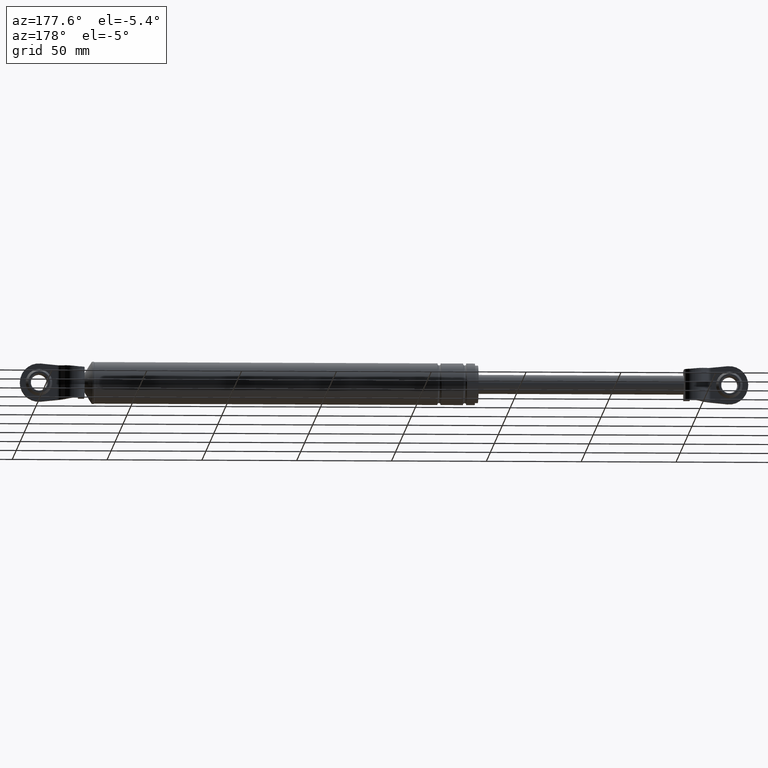
[diagram: clean part render]
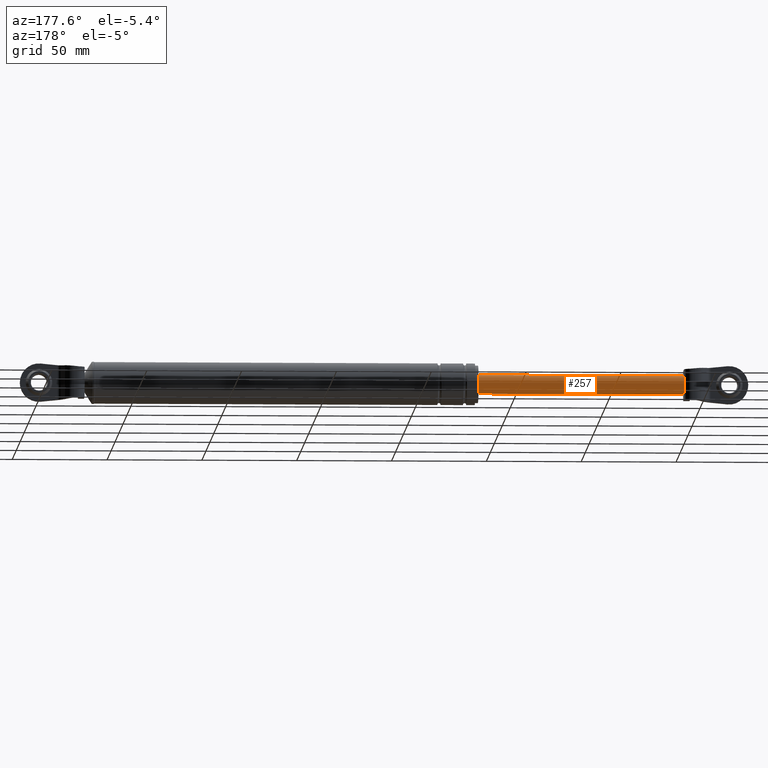
[diagram: same view with one face highlighted and labeled with its STEP entity id]
A machine part, auxiliary view. The second image highlights one B-rep face of the part: STEP entity #257.
In plain terms, the highlighted cylindrical surface (edge-blend (fillet) strip) has radius 5 mm, axis along (1, 0, 0).
Its self-contained STEP definition (entity closure, byte-faithful):
#257=ADVANCED_FACE('',(#1729),#1728,.T.);
#1728=CYLINDRICAL_SURFACE('',#2745,5.00000000000E+000);
#1729=FACE_OUTER_BOUND('',#2746,.T.);
#2742=CARTESIAN_POINT('',(0.00000000000E+000,0.00000000000E+000,1.93496945170E+002));
#2743=DIRECTION('',(1.00000000000E+000,-0.00000000000E+000,-0.00000000000E+000));
#2744=DIRECTION('',(-0.00000000000E+000,-0.00000000000E+000,-1.00000000000E+000));
#2745=AXIS2_PLACEMENT_3D('',#2742,#2743,#2744);
#2746=EDGE_LOOP('',(#3504,#3505,#3506,#3507,#3508,#3509));
#3504=ORIENTED_EDGE('',*,*,#3826,.T.);
#3505=ORIENTED_EDGE('',*,*,#3906,.F.);
#3506=ORIENTED_EDGE('',*,*,#3840,.F.);
#3507=ORIENTED_EDGE('',*,*,#3836,.F.);
#3508=ORIENTED_EDGE('',*,*,#3842,.F.);
#3509=ORIENTED_EDGE('',*,*,#3907,.T.);
#3826=EDGE_CURVE('',#5771,#5770,#5778,.T.);
#3836=EDGE_CURVE('',#5840,#5841,#5848,.T.);
#3840=EDGE_CURVE('',#5841,#5873,#5874,.T.);
#3842=EDGE_CURVE('',#5880,#5840,#5887,.T.);
#3906=EDGE_CURVE('',#5873,#5770,#6304,.T.);
#3907=EDGE_CURVE('',#5880,#5771,#6310,.T.);
#5770=VERTEX_POINT('',#7614);
#5771=VERTEX_POINT('',#7615);
#5778=CIRCLE('',#7623,5.00000000000E+000);
#5840=VERTEX_POINT('',#7660);
#5841=VERTEX_POINT('',#7661);
#5848=CIRCLE('',#7668,5.00000000000E+000);
#5873=VERTEX_POINT('',#7679);
#5874=CIRCLE('',#7683,5.00000000000E+000);
#5880=VERTEX_POINT('',#7684);
#5887=CIRCLE('',#7692,5.00000000000E+000);
#6304=(BOUNDED_CURVE() B_SPLINE_CURVE(1,(#7926,#7927),.UNSPECIFIED.,.F.,.F.) B_SPLINE_CURVE_WITH_KNOTS((2,2),(7.78210114682E-002,9.22178988300E-001),.UNSPECIFIED.) CURVE() GEOMETRIC_REPRESENTATION_ITEM() RATIONAL_B_SPLINE_CURVE((1.00000000000E+000,1.00000000000E+000)) REPRESENTATION_ITEM('') );
#6310=(BOUNDED_CURVE() B_SPLINE_CURVE(1,(#7928,#7929),.UNSPECIFIED.,.F.,.F.) B_SPLINE_CURVE_WITH_KNOTS((2,2),(7.78210116732E-002,9.22178988327E-001),.UNSPECIFIED.) CURVE() GEOMETRIC_REPRESENTATION_ITEM() RATIONAL_B_SPLINE_CURVE((7.50000000000E-001,7.50000000000E-001)) REPRESENTATION_ITEM('') );
#7614=CARTESIAN_POINT('',(1.64956691269E+002,2.96059473233E-016,1.88496945170E+002));
#7615=CARTESIAN_POINT('',(1.64956691269E+002,0.00000000000E+000,1.98496945170E+002));
#7620=CARTESIAN_POINT('',(1.64956691269E+002,0.00000000000E+000,1.93496945170E+002));
#7621=DIRECTION('',(-1.00000000000E+000,0.00000000000E+000,0.00000000000E+000));
#7622=DIRECTION('',(0.00000000000E+000,-1.22460635382E-016,1.00000000000E+000));
#7623=AXIS2_PLACEMENT_3D('',#7620,#7621,#7622);
#7660=CARTESIAN_POINT('',(5.64566912686E+001,3.40000000000E+000,1.97163005726E+002));
#7661=CARTESIAN_POINT('',(5.64566912686E+001,3.40000000000E+000,1.89830884614E+002));
#7665=CARTESIAN_POINT('',(5.64566912686E+001,0.00000000000E+000,1.93496945170E+002));
#7666=DIRECTION('',(-1.00000000000E+000,0.00000000000E+000,0.00000000000E+000));
#7667=DIRECTION('',(-0.00000000000E+000,-0.00000000000E+000,-1.00000000000E+000));
#7668=AXIS2_PLACEMENT_3D('',#7665,#7666,#7667);
#7679=CARTESIAN_POINT('',(5.64566912686E+001,-4.88805815831E-013,1.88496945170E+002));
#7680=CARTESIAN_POINT('',(5.64566912686E+001,0.00000000000E+000,1.93496945170E+002));
#7681=DIRECTION('',(-1.00000000000E+000,0.00000000000E+000,0.00000000000E+000));
#7682=DIRECTION('',(-0.00000000000E+000,6.80000000000E-001,-7.33212111193E-001));
#7683=AXIS2_PLACEMENT_3D('',#7680,#7681,#7682);
#7684=CARTESIAN_POINT('',(5.64566912686E+001,-7.04600016236E-004,1.98496945120E+002));
#7689=CARTESIAN_POINT('',(5.64566912686E+001,0.00000000000E+000,1.93496945170E+002));
#7690=DIRECTION('',(-1.00000000000E+000,0.00000000000E+000,0.00000000000E+000));
#7691=DIRECTION('',(-0.00000000000E+000,6.80000000000E-001,-7.33212111193E-001));
#7692=AXIS2_PLACEMENT_3D('',#7689,#7690,#7691);
#7926=CARTESIAN_POINT('',(5.64566912422E+001,0.00000000000E+000,1.88496945170E+002));
#7927=CARTESIAN_POINT('',(1.64956691265E+002,0.00000000000E+000,1.88496945170E+002));
#7928=CARTESIAN_POINT('',(5.64566912686E+001,-2.96059473233E-016,1.98496945170E+002));
#7929=CARTESIAN_POINT('',(1.64956691269E+002,-2.96059473233E-016,1.98496945170E+002));